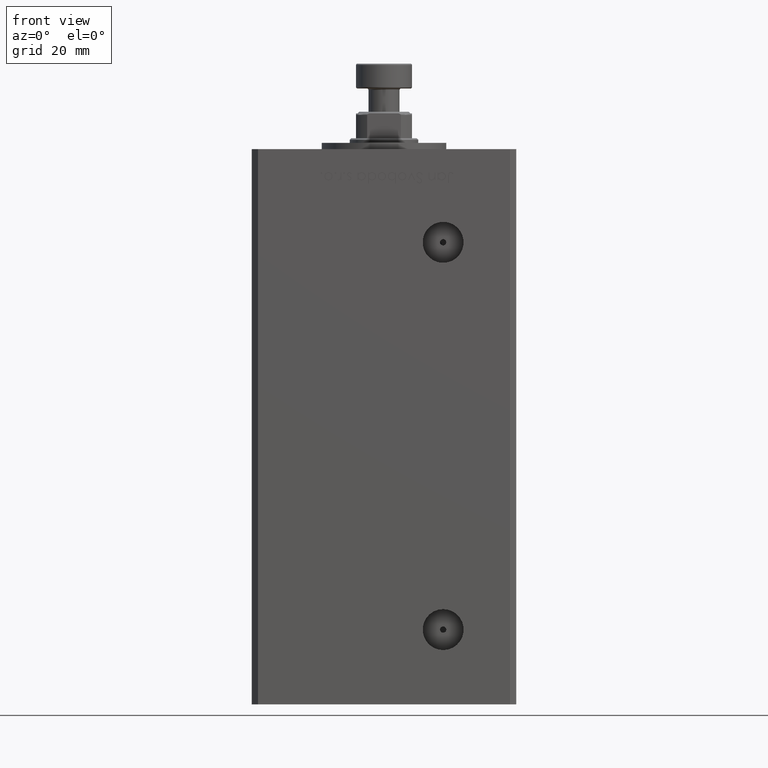
[diagram: clean part render]
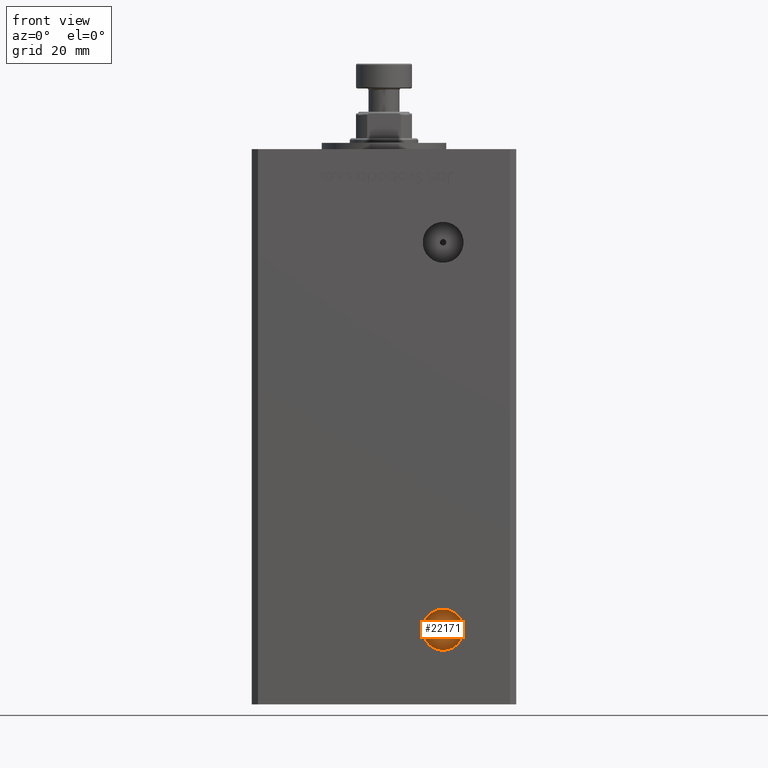
[diagram: same view with one face highlighted and labeled with its STEP entity id]
A machine part, front view. The second image highlights one B-rep face of the part: STEP entity #22171.
In plain terms, the highlighted planar face has unit normal (0, -1, 0).
Its self-contained STEP definition (entity closure, byte-faithful):
#1442 = DIRECTION ( 'NONE',  ( 0.000000000000000000, 0.000000000000000000, -1.000000000000000000 ) ) ;
#3108 = EDGE_LOOP ( 'NONE', ( #35092, #38567 ) ) ;
#4729 = PLANE ( 'NONE',  #50022 ) ;
#6195 = DIRECTION ( 'NONE',  ( 0.000000000000000000, 0.000000000000000000, -1.000000000000000000 ) ) ;
#6882 = CIRCLE ( 'NONE', #23863, 1.000000000000000888 ) ;
#7681 = EDGE_LOOP ( 'NONE', ( #34291, #41781 ) ) ;
#7936 = FACE_BOUND ( 'NONE', #3108, .T. ) ;
#9048 = VERTEX_POINT ( 'NONE', #26440 ) ;
#11909 = CIRCLE ( 'NONE', #25504, 6.579999999999998295 ) ;
#13177 = CARTESIAN_POINT ( 'NONE',  ( 18.99999999999998934, -24.50000000000000711, 9.000000000000007105 ) ) ;
#13580 = CIRCLE ( 'NONE', #32321, 6.579999999999998295 ) ;
#16200 = CARTESIAN_POINT ( 'NONE',  ( 18.99999999999998934, -24.50000000000000711, 9.000000000000007105 ) ) ;
#16278 = EDGE_CURVE ( 'NONE', #52025, #9048, #11909, .T. ) ;
#16374 = EDGE_CURVE ( 'NONE', #9048, #52025, #13580, .T. ) ;
#16622 = CARTESIAN_POINT ( 'NONE',  ( 18.99999999999998934, -24.50000000000000711, 8.000000000000007105 ) ) ;
#19799 = VERTEX_POINT ( 'NONE', #16622 ) ;
#22171 = ADVANCED_FACE ( 'NONE', ( #7936, #28693 ), #4729, .T. ) ;
#23863 = AXIS2_PLACEMENT_3D ( 'NONE', #27223, #47231, #6195 ) ;
#23923 = DIRECTION ( 'NONE',  ( 0.000000000000000000, -1.000000000000000000, 0.000000000000000000 ) ) ;
#25364 = VERTEX_POINT ( 'NONE', #37494 ) ;
#25504 = AXIS2_PLACEMENT_3D ( 'NONE', #29509, #42039, #38570 ) ;
#26440 = CARTESIAN_POINT ( 'NONE',  ( 18.99999999999998934, -24.50000000000000711, 15.58000000000000718 ) ) ;
#27223 = CARTESIAN_POINT ( 'NONE',  ( 18.99999999999998934, -24.50000000000000711, 9.000000000000007105 ) ) ;
#28693 = FACE_OUTER_BOUND ( 'NONE', #7681, .T. ) ;
#29509 = CARTESIAN_POINT ( 'NONE',  ( 18.99999999999998934, -24.50000000000000711, 9.000000000000007105 ) ) ;
#32321 = AXIS2_PLACEMENT_3D ( 'NONE', #50061, #34043, #46297 ) ;
#32626 = CARTESIAN_POINT ( 'NONE',  ( 18.99999999999998934, -24.50000000000000711, 2.420000000000009699 ) ) ;
#34043 = DIRECTION ( 'NONE',  ( 0.000000000000000000, -1.000000000000000000, 0.000000000000000000 ) ) ;
#34195 = EDGE_CURVE ( 'NONE', #25364, #19799, #50253, .T. ) ;
#34291 = ORIENTED_EDGE ( 'NONE', *, *, #16278, .T. ) ;
#35092 = ORIENTED_EDGE ( 'NONE', *, *, #35335, .F. ) ;
#35335 = EDGE_CURVE ( 'NONE', #19799, #25364, #6882, .T. ) ;
#37494 = CARTESIAN_POINT ( 'NONE',  ( 18.99999999999998934, -24.50000000000000711, 10.00000000000000888 ) ) ;
#37936 = DIRECTION ( 'NONE',  ( 0.000000000000000000, -1.000000000000000000, 0.000000000000000000 ) ) ;
#38567 = ORIENTED_EDGE ( 'NONE', *, *, #34195, .F. ) ;
#38570 = DIRECTION ( 'NONE',  ( 0.000000000000000000, 0.000000000000000000, -1.000000000000000000 ) ) ;
#41781 = ORIENTED_EDGE ( 'NONE', *, *, #16374, .T. ) ;
#42039 = DIRECTION ( 'NONE',  ( 0.000000000000000000, -1.000000000000000000, 0.000000000000000000 ) ) ;
#44960 = DIRECTION ( 'NONE',  ( 0.000000000000000000, -0.000000000000000000, -1.000000000000000000 ) ) ;
#45960 = AXIS2_PLACEMENT_3D ( 'NONE', #13177, #37936, #1442 ) ;
#46297 = DIRECTION ( 'NONE',  ( 0.000000000000000000, 0.000000000000000000, -1.000000000000000000 ) ) ;
#47231 = DIRECTION ( 'NONE',  ( 0.000000000000000000, -1.000000000000000000, 0.000000000000000000 ) ) ;
#50022 = AXIS2_PLACEMENT_3D ( 'NONE', #16200, #23923, #44960 ) ;
#50061 = CARTESIAN_POINT ( 'NONE',  ( 18.99999999999998934, -24.50000000000000711, 9.000000000000007105 ) ) ;
#50253 = CIRCLE ( 'NONE', #45960, 1.000000000000000888 ) ;
#52025 = VERTEX_POINT ( 'NONE', #32626 ) ;